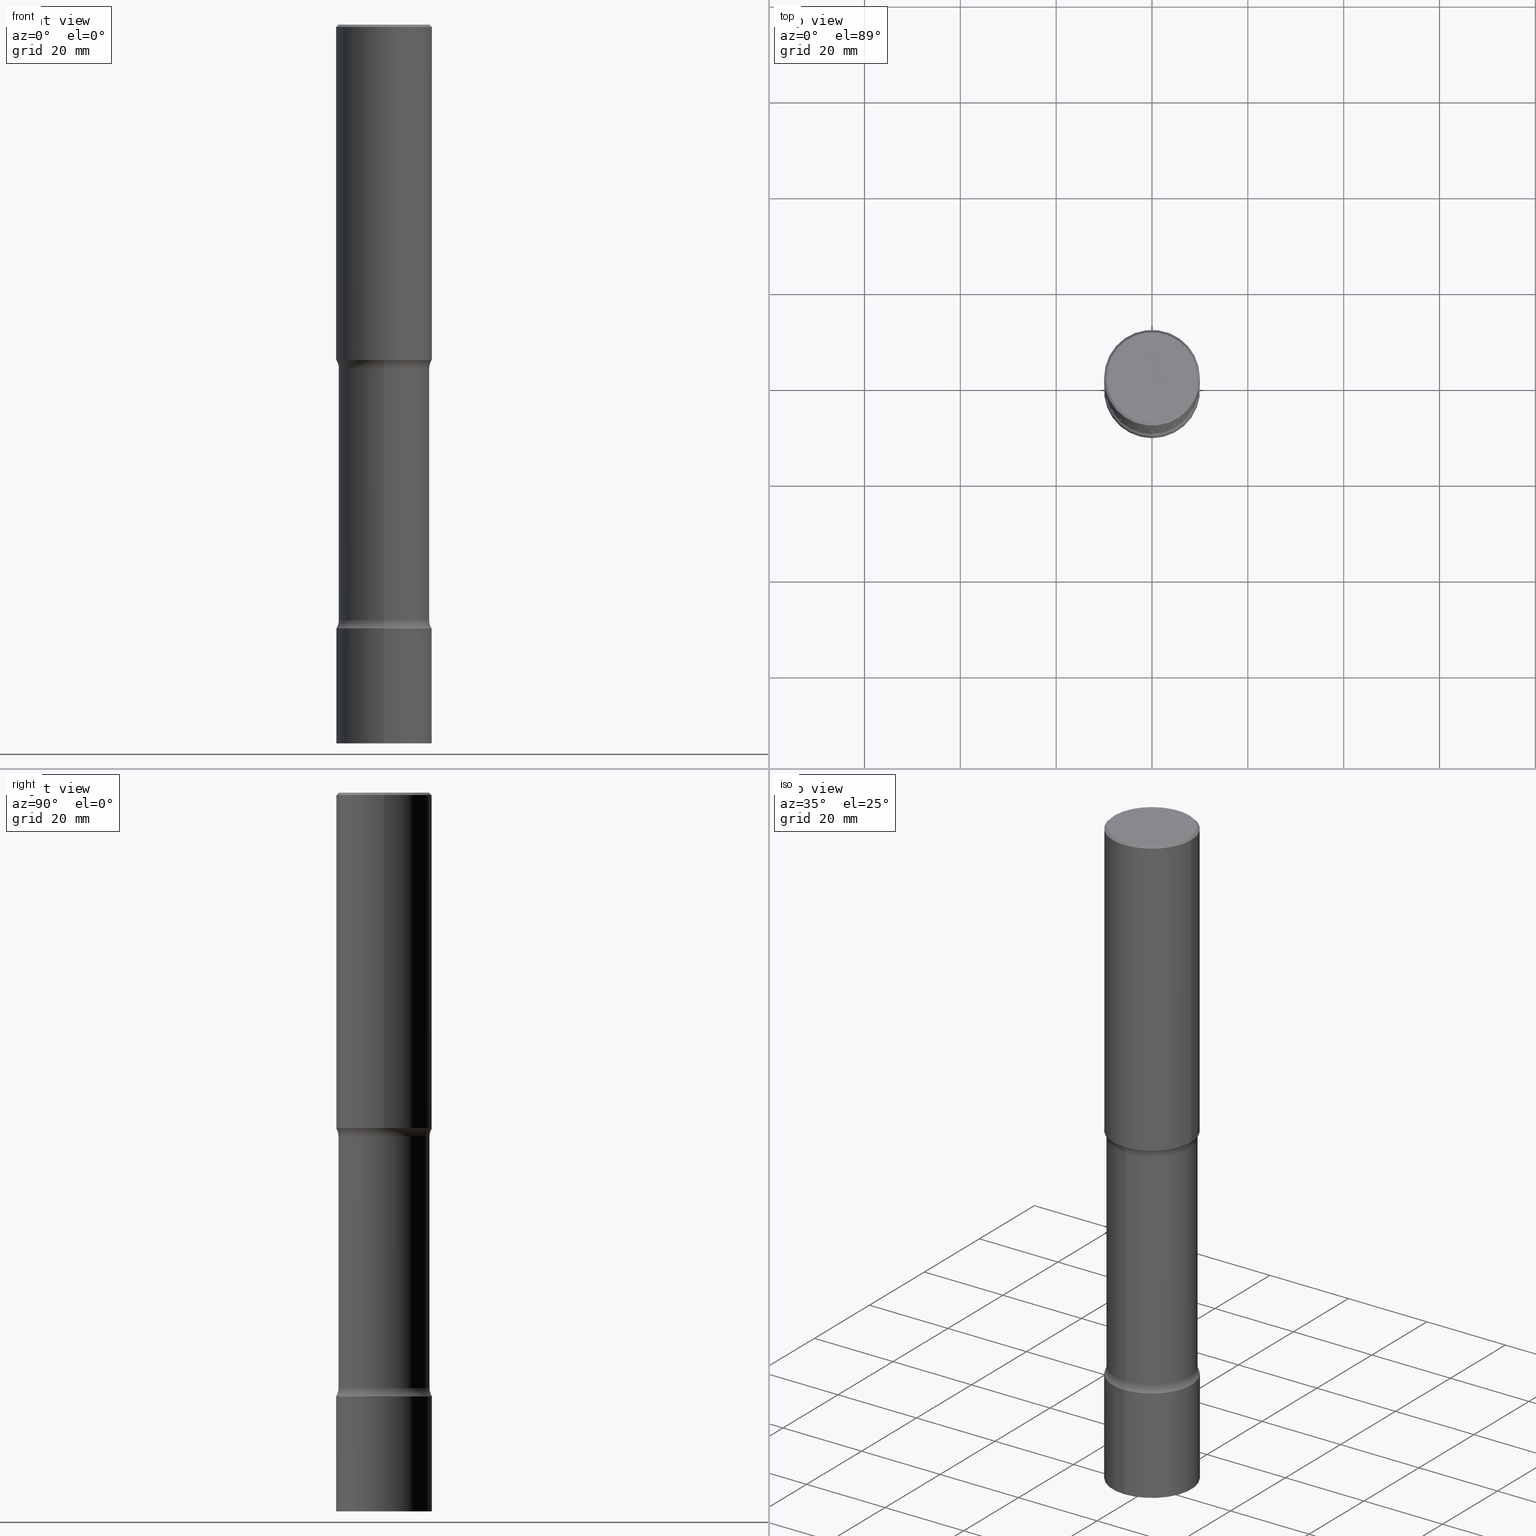
[diagram: canonical four-view strip — front | top / right | iso, engineering-drawing reading convention]
A machine part, canonical four-view strip (front | top / right | iso — engineering-drawing reading convention). The complete STEP part file that produces these views, byte-faithful:
ISO-10303-21;
HEADER;
FILE_DESCRIPTION (( 'STEP AP203' ),
    '1' );
FILE_NAME ('45111.STEP',
    '2024-03-11T13:43:24',
    ( '' ),
    ( '' ),
    'SwSTEP 2.0',
    'SolidWorks 2023',
    '' );
FILE_SCHEMA (( 'CONFIG_CONTROL_DESIGN' ));
ENDSEC;

DATA;
#1 = VERTEX_POINT ( 'NONE', #52 ) ;
#2 = CC_DESIGN_PERSON_AND_ORGANIZATION_ASSIGNMENT ( #489, #222, ( #139 ) ) ;
#3 = CARTESIAN_POINT ( 'NONE',  ( -2.565826251166408954E-15, -0.3740000000000208158, -5.905499999999998195 ) ) ;
#4 = ORIENTED_EDGE ( 'NONE', *, *, #482, .T. ) ;
#5 = VECTOR ( 'NONE', #365, 39.37007874015748143 ) ;
#6 = DIRECTION ( 'NONE',  ( -2.445783037014241883E-29, 3.491031342410958513E-15, 1.000000000000000000 ) ) ;
#7 = EDGE_CURVE ( 'NONE', #243, #1, #435, .T. ) ;
#8 = DIRECTION ( 'NONE',  ( -1.000000000000000000, 6.982962677686265922E-15, -4.883557194083112901E-29 ) ) ;
#9 = LINE ( 'NONE', #363, #44 ) ;
#10 = DIRECTION ( 'NONE',  ( -6.982962677686265922E-15, -1.000000000000000000, 2.775563112689117089E-15 ) ) ;
#11 = PLANE ( 'NONE',  #71 ) ;
#12 = CARTESIAN_POINT ( 'NONE',  ( -2.633402156444537006E-15, -0.3740000000000103242, -2.823256588393414201 ) ) ;
#13 = VERTEX_POINT ( 'NONE', #408 ) ;
#14 = CC_DESIGN_PERSON_AND_ORGANIZATION_ASSIGNMENT ( #59, #334, ( #361 ) ) ;
#15 = FACE_OUTER_BOUND ( 'NONE', #269, .T. ) ;
#16 = ORIENTED_EDGE ( 'NONE', *, *, #7, .F. ) ;
#17 = CARTESIAN_POINT ( 'NONE',  ( 6.713421992964071305E-29, -1.013053249250799915E-14, -2.823256588393415090 ) ) ;
#18 = CIRCLE ( 'NONE', #303, 0.3936999999999996613 ) ;
#19 = ORIENTED_EDGE ( 'NONE', *, *, #63, .T. ) ;
#20 = CIRCLE ( 'NONE', #436, 0.3740000000000004987 ) ;
#21 = PERSON_AND_ORGANIZATION_ROLE ( 'classification_officer' ) ;
#22 = CARTESIAN_POINT ( 'NONE',  ( -2.633402156444483363E-15, -0.3740000000000175961, -4.893243411606583493 ) ) ;
#23 = LINE ( 'NONE', #261, #498 ) ;
#24 = EDGE_CURVE ( 'NONE', #13, #357, #217, .T. ) ;
#25 = MANIFOLD_SOLID_BREP ( 'Body-Move/Copy2[2]', #323 ) ;
#26 =( NAMED_UNIT ( * ) SI_UNIT ( $, .STERADIAN. ) SOLID_ANGLE_UNIT ( ) );
#27 = CARTESIAN_POINT ( 'NONE',  ( 1.196112077380108105E-28, -1.709204794905862240E-14, -4.893243411606584381 ) ) ;
#28 = AXIS2_PLACEMENT_3D ( 'NONE', #67, #135, #372 ) ;
#29 = CIRCLE ( 'NONE', #331, 0.1249999999999998335 ) ;
#30 = APPROVAL_PERSON_ORGANIZATION ( #295, #333, #172 ) ;
#31 = APPROVAL_ROLE ( '' ) ;
#32 = DIRECTION ( 'NONE',  ( -6.982962677686265922E-15, -1.000000000000000000, 3.491031342410958908E-15 ) ) ;
#33 = ADVANCED_FACE ( 'NONE', ( #169 ), #412, .F. ) ;
#34 = CC_DESIGN_DATE_AND_TIME_ASSIGNMENT ( #66, #130, ( #276 ) ) ;
#35 = CARTESIAN_POINT ( 'NONE',  ( 0.3736999999999995326, -2.667287895133365992E-15, 8.537024980219274507E-18 ) ) ;
#36 = CARTESIAN_POINT ( 'NONE',  ( 1.444357172508760156E-28, -2.061628559260791379E-14, -5.905499999999999972 ) ) ;
#37 = TOROIDAL_SURFACE ( 'NONE', #208, 0.4990000000000001101, 0.1249999999999998335 ) ;
#38 = LOCAL_TIME ( 9, 43, 24.00000000000000000, #340 ) ;
#39 = CARTESIAN_POINT ( 'NONE',  ( 6.692757159246300993E-29, -1.016012571056113774E-14, -2.823256588393415090 ) ) ;
#40 = ORIENTED_EDGE ( 'NONE', *, *, #47, .F. ) ;
#41 = DIRECTION ( 'NONE',  ( 2.545119396642768446E-29, -3.348776021548438389E-15, -1.000000000000000000 ) ) ;
#42 = ORIENTED_EDGE ( 'NONE', *, *, #315, .F. ) ;
#43 = DIRECTION ( 'NONE',  ( -2.445783037014241883E-29, 3.491031342410958908E-15, 1.000000000000000000 ) ) ;
#44 = VECTOR ( 'NONE', #475, 39.37007874015748143 ) ;
#45 = FACE_OUTER_BOUND ( 'NONE', #477, .T. ) ;
#46 = EDGE_LOOP ( 'NONE', ( #394, #165, #429, #95 ) ) ;
#47 = EDGE_CURVE ( 'NONE', #357, #13, #18, .T. ) ;
#48 = FACE_OUTER_BOUND ( 'NONE', #483, .T. ) ;
#49 = ORIENTED_EDGE ( 'NONE', *, *, #24, .T. ) ;
#50 = FACE_OUTER_BOUND ( 'NONE', #433, .T. ) ;
#51 = EDGE_CURVE ( 'NONE', #462, #388, #76, .T. ) ;
#52 = CARTESIAN_POINT ( 'NONE',  ( -2.749192406204960943E-15, -0.3937000000000173139, -4.960599999999998566 ) ) ;
#53 =( LENGTH_UNIT ( ) NAMED_UNIT ( * ) SI_UNIT ( $, .METRE. ) );
#54 = CIRCLE ( 'NONE', #374, 0.3936999999999999389 ) ;
#55 = ORIENTED_EDGE ( 'NONE', *, *, #391, .F. ) ;
#56 = ORIENTED_EDGE ( 'NONE', *, *, #493, .F. ) ;
#57 = CARTESIAN_POINT ( 'NONE',  ( 4.890937612370306439E-31, -6.982962677686338448E-17, -0.02000000000000013572 ) ) ;
#58 = ORIENTED_EDGE ( 'NONE', *, *, #373, .F. ) ;
#59 = PERSON_AND_ORGANIZATION ( #146, #324 ) ;
#60 = AXIS2_PLACEMENT_3D ( 'NONE', #301, #212, #411 ) ;
#61 = DIRECTION ( 'NONE',  ( 6.982962677686265922E-15, 1.000000000000000000, -3.348776021548438389E-15 ) ) ;
#62 = CONICAL_SURFACE ( 'NONE', #218, 0.3936999999999996613, 0.7853981633974479459 ) ;
#63 = EDGE_CURVE ( 'NONE', #431, #382, #285, .T. ) ;
#64 = SHAPE_DEFINITION_REPRESENTATION ( #224, #316 ) ;
#65 = DIRECTION ( 'NONE',  ( 2.545119396642768446E-29, -3.348776021548438389E-15, -1.000000000000000000 ) ) ;
#66 = DATE_AND_TIME ( #255, #220 ) ;
#67 = CARTESIAN_POINT ( 'NONE',  ( 6.739467482965618232E-29, -9.622173421717824390E-15, -2.755900000000000016 ) ) ;
#68 = CARTESIAN_POINT ( 'NONE',  ( 0.000000000000000000, 0.000000000000000000, 0.000000000000000000 ) ) ;
#69 = CARTESIAN_POINT ( 'NONE',  ( 0.3936999999999999389, -1.237136582792290603E-14, -2.755900000000000016 ) ) ;
#70 = AXIS2_PLACEMENT_3D ( 'NONE', #419, #65, #61 ) ;
#71 = AXIS2_PLACEMENT_3D ( 'NONE', #196, #202, #328 ) ;
#72 = DIRECTION ( 'NONE',  ( 1.000000000000000000, -6.982962677686266711E-15, 4.876176775795935793E-29 ) ) ;
#73 = DIRECTION ( 'NONE',  ( -2.445783037014241883E-29, 3.491031342410958908E-15, 1.000000000000000000 ) ) ;
#74 = DIRECTION ( 'NONE',  ( 2.545119396642768446E-29, -3.348776021548438389E-15, -1.000000000000000000 ) ) ;
#75 = VERTEX_POINT ( 'NONE', #137 ) ;
#76 = CIRCLE ( 'NONE', #352, 0.1249999999999998335 ) ;
#77 = AXIS2_PLACEMENT_3D ( 'NONE', #430, #78, #460 ) ;
#78 = DIRECTION ( 'NONE',  ( -1.000000000000000000, 6.982962677686265922E-15, -4.883557194083112901E-29 ) ) ;
#79 = ADVANCED_FACE ( 'NONE', ( #299 ), #198, .F. ) ;
#80 = CARTESIAN_POINT ( 'NONE',  ( -2.087702828670439639E-46, 2.980686340760894400E-32, 8.537024980200822558E-18 ) ) ;
#81 = ORIENTED_EDGE ( 'NONE', *, *, #438, .T. ) ;
#82 = PLANE ( 'NONE',  #353 ) ;
#83 = AXIS2_PLACEMENT_3D ( 'NONE', #453, #492, #32 ) ;
#84 = AXIS2_PLACEMENT_3D ( 'NONE', #27, #339, #502 ) ;
#85 = DIRECTION ( 'NONE',  ( 6.982962677686265922E-15, 1.000000000000000000, -3.348776021548438389E-15 ) ) ;
#86 = VERTEX_POINT ( 'NONE', #377 ) ;
#87 = PLANE ( 'NONE',  #228 ) ;
#88 = VERTEX_POINT ( 'NONE', #35 ) ;
#89 = ORIENTED_EDGE ( 'NONE', *, *, #410, .F. ) ;
#90 = CARTESIAN_POINT ( 'NONE',  ( -2.749192406204937672E-15, -0.3937000000000205890, -5.905499999999998195 ) ) ;
#91 = CIRCLE ( 'NONE', #199, 0.3936999999999999389 ) ;
#92 = AXIS2_PLACEMENT_3D ( 'NONE', #349, #309, #351 ) ;
#93 = DIRECTION ( 'NONE',  ( -2.445468806185136597E-29, 3.491481338843145583E-15, 1.000000000000000000 ) ) ;
#94 = APPROVAL_PERSON_ORGANIZATION ( #368, #265, #31 ) ;
#95 = ORIENTED_EDGE ( 'NONE', *, *, #96, .F. ) ;
#96 = EDGE_CURVE ( 'NONE', #442, #1, #23, .T. ) ;
#97 = PERSON_AND_ORGANIZATION ( #146, #324 ) ;
#98 = LINE ( 'NONE', #305, #140 ) ;
#99 = CALENDAR_DATE ( 2024, 11, 3 ) ;
#100 = FACE_OUTER_BOUND ( 'NONE', #266, .T. ) ;
#101 = LOCAL_TIME ( 9, 43, 24.00000000000000000, #257 ) ;
#102 = DIRECTION ( 'NONE',  ( 6.982962677686265922E-15, 1.000000000000000000, -3.491031342410958513E-15 ) ) ;
#103 = DIRECTION ( 'NONE',  ( 1.000000000000000000, 0.000000000000000000, 0.000000000000000000 ) ) ;
#104 = CARTESIAN_POINT ( 'NONE',  ( -3.423388500887927708E-15, -0.4990000000000102132, -2.823256588393413313 ) ) ;
#105 = CARTESIAN_POINT ( 'NONE',  ( 2.797406750687658359E-15, 0.3936999999999826194, -4.960600000000000342 ) ) ;
#106 = AXIS2_PLACEMENT_3D ( 'NONE', #57, #356, #400 ) ;
#107 = LINE ( 'NONE', #468, #157 ) ;
#108 = ADVANCED_FACE ( 'NONE', ( #256 ), #171, .T. ) ;
#109 = APPROVAL ( #298, 'UNSPECIFIED' ) ;
#110 = VERTEX_POINT ( 'NONE', #69 ) ;
#111 = DIRECTION ( 'NONE',  ( -6.982962677686265922E-15, -1.000000000000000000, 2.775563112689117089E-15 ) ) ;
#112 = ORIENTED_EDGE ( 'NONE', *, *, #293, .T. ) ;
#113 = APPLICATION_CONTEXT ( 'configuration controlled 3d designs of mechanical parts and assemblies' ) ;
#114 = AXIS2_PLACEMENT_3D ( 'NONE', #133, #254, #370 ) ;
#115 = CC_DESIGN_APPROVAL ( #333, ( #276 ) ) ;
#116 = CARTESIAN_POINT ( 'NONE',  ( 2.611628041454786670E-15, 0.3739999999999834568, -4.893243411606585269 ) ) ;
#117 = EDGE_LOOP ( 'NONE', ( #206, #232, #318, #278 ) ) ;
#118 = DIRECTION ( 'NONE',  ( 6.982962677686265922E-15, 1.000000000000000000, -3.348776021548438389E-15 ) ) ;
#119 = LENGTH_MEASURE_WITH_UNIT ( LENGTH_MEASURE( 0.02539999999999999897 ), #53 );
#120 = EDGE_LOOP ( 'NONE', ( #364, #42 ) ) ;
#121 = EDGE_CURVE ( 'NONE', #88, #357, #98, .T. ) ;
#122 = DIRECTION ( 'NONE',  ( 1.000000000000000000, -6.982962677686265133E-15, 0.000000000000000000 ) ) ;
#123 = ORIENTED_EDGE ( 'NONE', *, *, #51, .T. ) ;
#124 = DIRECTION ( 'NONE',  ( 2.545119396642768446E-29, -3.348776021548438389E-15, -1.000000000000000000 ) ) ;
#125 = CARTESIAN_POINT ( 'NONE',  ( 1.196627412415483839E-28, -1.708466805804155848E-14, -4.893243411606584381 ) ) ;
#126 = PLANE ( 'NONE',  #420 ) ;
#127 = CARTESIAN_POINT ( 'NONE',  ( 1.213255133341284668E-28, -1.731761007716380225E-14, -4.960599999999999454 ) ) ;
#128 = ORIENTED_EDGE ( 'NONE', *, *, #347, .F. ) ;
#129 = ORIENTED_EDGE ( 'NONE', *, *, #417, .F. ) ;
#130 = DATE_TIME_ROLE ( 'classification_date' ) ;
#131 = CARTESIAN_POINT ( 'NONE',  ( 2.611628041454731844E-15, 0.3739999999999900071, -2.823256588393416422 ) ) ;
#132 = AXIS2_PLACEMENT_3D ( 'NONE', #504, #379, #343 ) ;
#133 = CARTESIAN_POINT ( 'NONE',  ( 6.521326599634536490E-29, -9.934563582455961051E-15, -2.755900000000000016 ) ) ;
#134 = COORDINATED_UNIVERSAL_TIME_OFFSET ( 5, 0, .BEHIND. ) ;
#135 = DIRECTION ( 'NONE',  ( 2.545119396642767886E-29, -3.348776021548438389E-15, -1.000000000000000000 ) ) ;
#136 = CALENDAR_DATE ( 2024, 11, 3 ) ;
#137 = CARTESIAN_POINT ( 'NONE',  ( -0.3937000000000000499, -2.048594773559827874E-15, -2.755900000000000016 ) ) ;
#138 = DIRECTION ( 'NONE',  ( 1.000000000000000000, -6.982962677686266711E-15, 4.876212485538981284E-29 ) ) ;
#139 = PRODUCT ( '45111', '45111', '', ( #170 ) ) ;
#140 = VECTOR ( 'NONE', #209, 39.37007874015748143 ) ;
#141 = AXIS2_PLACEMENT_3D ( 'NONE', #263, #74, #424 ) ;
#142 = DIRECTION ( 'NONE',  ( 1.000000000000000000, -6.982962677686266711E-15, 4.876176775795935793E-29 ) ) ;
#143 = ORIENTED_EDGE ( 'NONE', *, *, #47, .T. ) ;
#144 = DIRECTION ( 'NONE',  ( -1.000000000000000000, 6.982962677686266711E-15, 0.000000000000000000 ) ) ;
#145 = EDGE_LOOP ( 'NONE', ( #112, #183 ) ) ;
#146 = PERSON ( 'UNSPECIFIED', 'UNSPECIFIED', 'UNSPECIFIED', ('UNSPECIFIED'), ('UNSPECIFIED'), ('UNSPECIFIED') ) ;
#147 = FACE_OUTER_BOUND ( 'NONE', #472, .T. ) ;
#148 = ORIENTED_EDGE ( 'NONE', *, *, #233, .T. ) ;
#149 = VECTOR ( 'NONE', #6, 39.37007874015748143 ) ;
#150 = EDGE_CURVE ( 'NONE', #110, #75, #54, .T. ) ;
#151 = CYLINDRICAL_SURFACE ( 'NONE', #360, 0.3740000000000002767 ) ;
#152 = ORIENTED_EDGE ( 'NONE', *, *, #302, .F. ) ;
#153 = DIRECTION ( 'NONE',  ( 1.000000000000000000, -6.982962677686266711E-15, 4.876212485538981284E-29 ) ) ;
#154 = ORIENTED_EDGE ( 'NONE', *, *, #347, .T. ) ;
#155 = CARTESIAN_POINT ( 'NONE',  ( 6.739467482965618232E-29, -9.622173421717824390E-15, -2.755900000000000016 ) ) ;
#156 = VERTEX_POINT ( 'NONE', #22 ) ;
#157 = VECTOR ( 'NONE', #188, 39.37007874015748143 ) ;
#158 = CARTESIAN_POINT ( 'NONE',  ( 6.739467482965618232E-29, -9.622173421717824390E-15, -2.755900000000000016 ) ) ;
#159 = ORIENTED_EDGE ( 'NONE', *, *, #273, .T. ) ;
#160 = ADVANCED_FACE ( 'NONE', ( #421 ), #369, .T. ) ;
#161 = CYLINDRICAL_SURFACE ( 'NONE', #413, 0.3740000000000002767 ) ;
#162 = VERTEX_POINT ( 'NONE', #131 ) ;
#163 = DIRECTION ( 'NONE',  ( 1.000000000000000000, -6.982962677686265922E-15, 4.876176775795935793E-29 ) ) ;
#164 = EDGE_CURVE ( 'NONE', #326, #88, #466, .T. ) ;
#165 = ORIENTED_EDGE ( 'NONE', *, *, #380, .T. ) ;
#166 = AXIS2_PLACEMENT_3D ( 'NONE', #444, #359, #332 ) ;
#167 = APPLICATION_PROTOCOL_DEFINITION ( 'international standard', 'config_control_design', 1994, #497 ) ;
#168 = CIRCLE ( 'NONE', #267, 0.3736999999999995326 ) ;
#169 = FACE_OUTER_BOUND ( 'NONE', #117, .T. ) ;
#170 = MECHANICAL_CONTEXT ( 'NONE', #497, 'mechanical' ) ;
#171 = CYLINDRICAL_SURFACE ( 'NONE', #83, 0.3936999999999999389 ) ;
#172 = APPROVAL_ROLE ( '' ) ;
#173 = DIRECTION ( 'NONE',  ( -2.445783037014241883E-29, 3.491031342410958513E-15, 1.000000000000000000 ) ) ;
#174 = DIRECTION ( 'NONE',  ( 0.000000000000000000, 0.000000000000000000, 1.000000000000000000 ) ) ;
#175 = DIRECTION ( 'NONE',  ( 1.000000000000000000, -6.982962677686265133E-15, 0.000000000000000000 ) ) ;
#176 = CC_DESIGN_APPROVAL ( #109, ( #486 ) ) ;
#177 = CALENDAR_DATE ( 2024, 11, 3 ) ;
#178 = CYLINDRICAL_SURFACE ( 'NONE', #344, 0.3936999999999998279 ) ;
#179 = MANIFOLD_SOLID_BREP ( 'Body-Move/Copy2[1]', #485 ) ;
#180 = CARTESIAN_POINT ( 'NONE',  ( 0.000000000000000000, 0.000000000000000000, 0.000000000000000000 ) ) ;
#181 = LINE ( 'NONE', #3, #393 ) ;
#182 = CIRCLE ( 'NONE', #114, 0.3937000000000003830 ) ;
#183 = ORIENTED_EDGE ( 'NONE', *, *, #7, .T. ) ;
#184 = CARTESIAN_POINT ( 'NONE',  ( 2.749192406205149086E-15, 0.3936999999999903910, -2.755900000000000905 ) ) ;
#185 = ORIENTED_EDGE ( 'NONE', *, *, #96, .T. ) ;
#186 = CARTESIAN_POINT ( 'NONE',  ( 0.3936999999999996613, -2.770807688499512973E-15, -0.02000000000000013572 ) ) ;
#187 = ORIENTED_EDGE ( 'NONE', *, *, #164, .T. ) ;
#188 = DIRECTION ( 'NONE',  ( -2.445468806185136877E-29, 3.491481338843145188E-15, 1.000000000000000000 ) ) ;
#189 = CONICAL_SURFACE ( 'NONE', #106, 0.3936999999999996613, 0.7853981633974479459 ) ;
#190 = DIRECTION ( 'NONE',  ( 2.445468806185136597E-29, -3.491481338843145583E-15, -1.000000000000000000 ) ) ;
#191 = ADVANCED_FACE ( 'NONE', ( #335 ), #178, .T. ) ;
#192 = EDGE_LOOP ( 'NONE', ( #282, #227 ) ) ;
#193 = EDGE_CURVE ( 'NONE', #287, #388, #182, .T. ) ;
#194 = DIRECTION ( 'NONE',  ( 2.545119396642768446E-29, -3.348776021548438389E-15, -1.000000000000000000 ) ) ;
#195 = ORIENTED_EDGE ( 'NONE', *, *, #380, .F. ) ;
#196 = CARTESIAN_POINT ( 'NONE',  ( 2.609533152651354254E-15, 0.3736999999999995326, -1.300498063835581630E-15 ) ) ;
#197 = EDGE_LOOP ( 'NONE', ( #362, #239, #487, #49 ) ) ;
#198 = TOROIDAL_SURFACE ( 'NONE', #70, 0.4990000000000001101, 0.1249999999999998335 ) ;
#199 = AXIS2_PLACEMENT_3D ( 'NONE', #463, #43, #306 ) ;
#200 = DIRECTION ( 'NONE',  ( -2.438088387897960049E-29, 3.491481338843145188E-15, 1.000000000000000000 ) ) ;
#201 = ORIENTED_EDGE ( 'NONE', *, *, #51, .F. ) ;
#202 = DIRECTION ( 'NONE',  ( 2.438088387897960049E-29, -3.491481338843145188E-15, -1.000000000000000000 ) ) ;
#203 = ORIENTED_EDGE ( 'NONE', *, *, #373, .T. ) ;
#204 = CC_DESIGN_PERSON_AND_ORGANIZATION_ASSIGNMENT ( #207, #21, ( #276 ) ) ;
#205 = DIRECTION ( 'NONE',  ( 2.545119396642768446E-29, -3.348776021548438389E-15, -1.000000000000000000 ) ) ;
#206 = ORIENTED_EDGE ( 'NONE', *, *, #482, .F. ) ;
#207 = PERSON_AND_ORGANIZATION ( #146, #324 ) ;
#208 = AXIS2_PLACEMENT_3D ( 'NONE', #17, #205, #85 ) ;
#209 = DIRECTION ( 'NONE',  ( 0.7071067811865472397, -7.319954787623254468E-15, -0.7071067811865477948 ) ) ;
#210 = PERSON_AND_ORGANIZATION_ROLE ( 'creator' ) ;
#211 = ADVANCED_FACE ( 'NONE', ( #100 ), #496, .T. ) ;
#212 = DIRECTION ( 'NONE',  ( -2.445783037014241883E-29, 3.491031342410958908E-15, 1.000000000000000000 ) ) ;
#213 = CC_DESIGN_PERSON_AND_ORGANIZATION_ASSIGNMENT ( #214, #210, ( #361 ) ) ;
#214 = PERSON_AND_ORGANIZATION ( #146, #324 ) ;
#215 = CARTESIAN_POINT ( 'NONE',  ( -2.087702828670439639E-46, 2.980686340760894400E-32, 8.537024980200822558E-18 ) ) ;
#216 = DATE_AND_TIME ( #448, #402 ) ;
#217 = CIRCLE ( 'NONE', #166, 0.3936999999999996613 ) ;
#218 = AXIS2_PLACEMENT_3D ( 'NONE', #355, #190, #144 ) ;
#219 = DIRECTION ( 'NONE',  ( 1.000000000000000000, -6.860497997771530774E-15, 4.842546515724605731E-29 ) ) ;
#220 = LOCAL_TIME ( 9, 43, 24.00000000000000000, #491 ) ;
#221 = ADVANCED_FACE ( 'NONE', ( #418 ), #457, .F. ) ;
#222 = PERSON_AND_ORGANIZATION_ROLE ( 'design_owner' ) ;
#223 = FACE_OUTER_BOUND ( 'NONE', #390, .T. ) ;
#224 = PRODUCT_DEFINITION_SHAPE ( 'NONE', 'NONE',  #486 ) ;
#225 = LINE ( 'NONE', #264, #149 ) ;
#226 = CARTESIAN_POINT ( 'NONE',  ( 1.213099255996198727E-28, -1.731984232946530752E-14, -4.960599999999999454 ) ) ;
#227 = ORIENTED_EDGE ( 'NONE', *, *, #423, .F. ) ;
#228 = AXIS2_PLACEMENT_3D ( 'NONE', #473, #396, #481 ) ;
#229 = DIRECTION ( 'NONE',  ( 2.545119396642768446E-29, -3.348776021548438389E-15, -1.000000000000000000 ) ) ;
#230 = ORIENTED_EDGE ( 'NONE', *, *, #391, .T. ) ;
#231 = DIRECTION ( 'NONE',  ( -2.445468806185136597E-29, 3.491481338843145583E-15, 1.000000000000000000 ) ) ;
#232 = ORIENTED_EDGE ( 'NONE', *, *, #63, .F. ) ;
#233 = EDGE_CURVE ( 'NONE', #156, #399, #311, .T. ) ;
#234 = CARTESIAN_POINT ( 'NONE',  ( 3.484498376165567248E-15, 0.4989999999999830682, -4.893243411606586157 ) ) ;
#235 = CIRCLE ( 'NONE', #253, 0.1249999999999998335 ) ;
#236 = PRODUCT_RELATED_PRODUCT_CATEGORY ( 'detail', '', ( #139 ) ) ;
#237 = DIRECTION ( 'NONE',  ( 2.545119396642768446E-29, -3.348776021548438389E-15, -1.000000000000000000 ) ) ;
#238 = DIMENSIONAL_EXPONENTS ( 1.000000000000000000, 0.000000000000000000, 0.000000000000000000, 0.000000000000000000, 0.000000000000000000, 0.000000000000000000, 0.000000000000000000 ) ;
#239 = ORIENTED_EDGE ( 'NONE', *, *, #164, .F. ) ;
#240 = CARTESIAN_POINT ( 'NONE',  ( 2.611628041454811125E-15, 0.3739999999999797931, -5.905500000000000860 ) ) ;
#241 = ORIENTED_EDGE ( 'NONE', *, *, #308, .T. ) ;
#242 = CARTESIAN_POINT ( 'NONE',  ( 2.749192406205205096E-15, 0.3936999999999827304, -4.960600000000000342 ) ) ;
#243 = VERTEX_POINT ( 'NONE', #105 ) ;
#244 = AXIS2_PLACEMENT_3D ( 'NONE', #503, #297, #102 ) ;
#245 = VECTOR ( 'NONE', #237, 39.37007874015748143 ) ;
#246 = CARTESIAN_POINT ( 'NONE',  ( 1.196112077380108105E-28, -1.709204794905862240E-14, -4.893243411606584381 ) ) ;
#247 = DIRECTION ( 'NONE',  ( 1.000000000000000000, -6.982962677686266711E-15, 0.000000000000000000 ) ) ;
#248 = ORIENTED_EDGE ( 'NONE', *, *, #315, .T. ) ;
#249 = DATE_TIME_ROLE ( 'creation_date' ) ;
#250 = DIRECTION ( 'NONE',  ( -2.445468806185136597E-29, 3.491481338843145583E-15, 1.000000000000000000 ) ) ;
#251 = AXIS2_PLACEMENT_3D ( 'NONE', #127, #449, #10 ) ;
#252 = APPROVAL_DATE_TIME ( #300, #265 ) ;
#253 = AXIS2_PLACEMENT_3D ( 'NONE', #407, #319, #325 ) ;
#254 = DIRECTION ( 'NONE',  ( 2.545119396642768446E-29, -3.348776021548438389E-15, -1.000000000000000000 ) ) ;
#255 = CALENDAR_DATE ( 2024, 11, 3 ) ;
#256 = FACE_OUTER_BOUND ( 'NONE', #46, .T. ) ;
#257 = COORDINATED_UNIVERSAL_TIME_OFFSET ( 5, 0, .BEHIND. ) ;
#258 = DIRECTION ( 'NONE',  ( 6.860497997771531562E-15, 1.000000000000000000, 0.000000000000000000 ) ) ;
#259 = SECURITY_CLASSIFICATION_LEVEL ( 'unclassified' ) ;
#260 = AXIS2_PLACEMENT_3D ( 'NONE', #262, #389, #118 ) ;
#261 = CARTESIAN_POINT ( 'NONE',  ( -2.749192406205082428E-15, -0.3936999999999999389, 1.374419039507194384E-15 ) ) ;
#262 = CARTESIAN_POINT ( 'NONE',  ( 1.196627412415483839E-28, -1.708466805804155848E-14, -4.893243411606584381 ) ) ;
#263 = CARTESIAN_POINT ( 'NONE',  ( 6.692757159246300993E-29, -1.016012571056113774E-14, -2.823256588393415090 ) ) ;
#264 = CARTESIAN_POINT ( 'NONE',  ( 2.797406750687513603E-15, 0.3936999999999999389, -1.374419039507194384E-15 ) ) ;
#265 = APPROVAL ( #501, 'UNSPECIFIED' ) ;
#266 = EDGE_LOOP ( 'NONE', ( #397, #152 ) ) ;
#267 = AXIS2_PLACEMENT_3D ( 'NONE', #80, #346, #153 ) ;
#268 = CARTESIAN_POINT ( 'NONE',  ( 1.453743465130059735E-28, -2.048186853992491890E-14, -5.905499999999999972 ) ) ;
#269 = EDGE_LOOP ( 'NONE', ( #128, #464, #143, #89 ) ) ;
#270 = DIRECTION ( 'NONE',  ( -6.982962677686264344E-15, -1.000000000000000000, 0.000000000000000000 ) ) ;
#271 = ORIENTED_EDGE ( 'NONE', *, *, #423, .T. ) ;
#272 = ADVANCED_FACE ( 'NONE', ( #223 ), #454, .T. ) ;
#273 = EDGE_CURVE ( 'NONE', #462, #156, #181, .T. ) ;
#274 = LINE ( 'NONE', #240, #245 ) ;
#275 = CIRCLE ( 'NONE', #488, 0.3936999999999999389 ) ;
#276 = SECURITY_CLASSIFICATION ( '', '', #259 ) ;
#277 = DIRECTION ( 'NONE',  ( 6.982962677686265922E-15, 1.000000000000000000, -2.775563112689117089E-15 ) ) ;
#278 = ORIENTED_EDGE ( 'NONE', *, *, #493, .T. ) ;
#279 = ADVANCED_FACE ( 'NONE', ( #147 ), #367, .F. ) ;
#280 = CARTESIAN_POINT ( 'NONE',  ( 1.213255133341284668E-28, -1.731761007716380225E-14, -4.960599999999999454 ) ) ;
#281 = EDGE_CURVE ( 'NONE', #162, #462, #338, .T. ) ;
#282 = ORIENTED_EDGE ( 'NONE', *, *, #150, .F. ) ;
#283 = FACE_OUTER_BOUND ( 'NONE', #447, .T. ) ;
#284 = DIRECTION ( 'NONE',  ( 2.545119396642768446E-29, -3.348776021548438389E-15, -1.000000000000000000 ) ) ;
#285 = CIRCLE ( 'NONE', #132, 0.3936999999999999389 ) ;
#286 = FACE_OUTER_BOUND ( 'NONE', #192, .T. ) ;
#287 = VERTEX_POINT ( 'NONE', #184 ) ;
#288 = APPLICATION_PROTOCOL_DEFINITION ( 'international standard', 'config_control_design', 1994, #113 ) ;
#289 = ORIENTED_EDGE ( 'NONE', *, *, #273, .F. ) ;
#290 = ADVANCED_FACE ( 'NONE', ( #508 ), #62, .T. ) ;
#291 = APPROVAL_STATUS ( 'not_yet_approved' ) ;
#292 = DIRECTION ( 'NONE',  ( -2.445468806185136597E-29, 3.491481338843145583E-15, 1.000000000000000000 ) ) ;
#293 = EDGE_CURVE ( 'NONE', #1, #243, #459, .T. ) ;
#294 = CLOSED_SHELL ( 'NONE', ( #403, #279, #500, #79, #221, #409, #33, #455 ) ) ;
#295 = PERSON_AND_ORGANIZATION ( #146, #324 ) ;
#296 = CIRCLE ( 'NONE', #506, 0.3937000000000003830 ) ;
#297 = DIRECTION ( 'NONE',  ( 2.445783037014241602E-29, -3.491031342410958513E-15, -1.000000000000000000 ) ) ;
#298 = APPROVAL_STATUS ( 'not_yet_approved' ) ;
#299 = FACE_OUTER_BOUND ( 'NONE', #437, .T. ) ;
#300 = DATE_AND_TIME ( #136, #38 ) ;
#301 = CARTESIAN_POINT ( 'NONE',  ( 0.000000000000000000, 0.000000000000000000, 0.000000000000000000 ) ) ;
#302 = EDGE_CURVE ( 'NONE', #86, #442, #91, .T. ) ;
#303 = AXIS2_PLACEMENT_3D ( 'NONE', #480, #93, #247 ) ;
#304 = CIRCLE ( 'NONE', #141, 0.3740000000000001656 ) ;
#305 = CARTESIAN_POINT ( 'NONE',  ( 0.3936999999999996613, -2.770807688499512973E-15, -0.02000000000000013572 ) ) ;
#306 = DIRECTION ( 'NONE',  ( -6.982962677686265922E-15, -1.000000000000000000, 2.775563112689117089E-15 ) ) ;
#307 = EDGE_LOOP ( 'NONE', ( #385, #271, #203, #313 ) ) ;
#308 = EDGE_CURVE ( 'NONE', #162, #287, #445, .T. ) ;
#309 = DIRECTION ( 'NONE',  ( -2.445783037014241883E-29, 3.491031342410958908E-15, 1.000000000000000000 ) ) ;
#310 = CARTESIAN_POINT ( 'NONE',  ( 6.521326599634536490E-29, -9.934563582455961051E-15, -2.755900000000000016 ) ) ;
#311 = CIRCLE ( 'NONE', #84, 0.3740000000000004987 ) ;
#312 = CIRCLE ( 'NONE', #375, 0.3936999999999999389 ) ;
#313 = ORIENTED_EDGE ( 'NONE', *, *, #24, .F. ) ;
#314 = AXIS2_PLACEMENT_3D ( 'NONE', #280, #443, #277 ) ;
#315 = EDGE_CURVE ( 'NONE', #388, #287, #296, .T. ) ;
#316 = ADVANCED_BREP_SHAPE_REPRESENTATION ( '45111', ( #179, #25, #354, #383 ), #476 ) ;
#317 = DIRECTION ( 'NONE',  ( 6.982962677686266711E-15, 1.000000000000000000, -2.921762560068728623E-15 ) ) ;
#318 = ORIENTED_EDGE ( 'NONE', *, *, #341, .T. ) ;
#319 = DIRECTION ( 'NONE',  ( 1.000000000000000000, -6.860497997771530774E-15, 4.842546515724605731E-29 ) ) ;
#320 = ORIENTED_EDGE ( 'NONE', *, *, #150, .T. ) ;
#321 = LINE ( 'NONE', #479, #5 ) ;
#322 = EDGE_LOOP ( 'NONE', ( #426, #159, #56, #129 ) ) ;
#323 = CLOSED_SHELL ( 'NONE', ( #272, #465, #290, #458, #478, #191 ) ) ;
#324 = ORGANIZATION ( 'UNSPECIFIED', 'UNSPECIFIED', '' ) ;
#325 = DIRECTION ( 'NONE',  ( 6.860497997771527618E-15, 1.000000000000000000, 0.000000000000000000 ) ) ;
#326 = VERTEX_POINT ( 'NONE', #422 ) ;
#327 = CC_DESIGN_DATE_AND_TIME_ASSIGNMENT ( #495, #249, ( #486 ) ) ;
#328 = DIRECTION ( 'NONE',  ( -1.000000000000000000, 6.982962677686265922E-15, -4.876176775795935793E-29 ) ) ;
#329 = ORIENTED_EDGE ( 'NONE', *, *, #281, .F. ) ;
#330 = ORIENTED_EDGE ( 'NONE', *, *, #193, .T. ) ;
#331 = AXIS2_PLACEMENT_3D ( 'NONE', #234, #8, #270 ) ;
#332 = DIRECTION ( 'NONE',  ( 1.000000000000000000, -6.982962677686266711E-15, 0.000000000000000000 ) ) ;
#333 = APPROVAL ( #291, 'UNSPECIFIED' ) ;
#334 = PERSON_AND_ORGANIZATION_ROLE ( 'design_supplier' ) ;
#335 = FACE_OUTER_BOUND ( 'NONE', #307, .T. ) ;
#336 = AXIS2_PLACEMENT_3D ( 'NONE', #125, #284, #401 ) ;
#337 = APPROVAL_DATE_TIME ( #216, #109 ) ;
#338 = CIRCLE ( 'NONE', #467, 0.3740000000000001656 ) ;
#339 = DIRECTION ( 'NONE',  ( 2.545119396642768446E-29, -3.348776021548438389E-15, -1.000000000000000000 ) ) ;
#340 = COORDINATED_UNIVERSAL_TIME_OFFSET ( 5, 0, .BEHIND. ) ;
#341 = EDGE_CURVE ( 'NONE', #431, #399, #29, .T. ) ;
#342 = DIRECTION ( 'NONE',  ( -2.445468806185136597E-29, 3.491481338843145583E-15, 1.000000000000000000 ) ) ;
#343 = DIRECTION ( 'NONE',  ( 6.982962677686265922E-15, 1.000000000000000000, -2.775563112689117089E-15 ) ) ;
#344 = AXIS2_PLACEMENT_3D ( 'NONE', #451, #342, #72 ) ;
#345 = DIRECTION ( 'NONE',  ( 6.982962677686265133E-15, 1.000000000000000000, -2.775563112689113934E-15 ) ) ;
#346 = DIRECTION ( 'NONE',  ( -2.445468806185136597E-29, 3.491481338843145583E-15, 1.000000000000000000 ) ) ;
#347 = EDGE_CURVE ( 'NONE', #88, #326, #168, .T. ) ;
#348 = ORIENTED_EDGE ( 'NONE', *, *, #308, .F. ) ;
#349 = CARTESIAN_POINT ( 'NONE',  ( 1.213255133341284668E-28, -1.731761007716380225E-14, -4.960599999999999454 ) ) ;
#350 = ORIENTED_EDGE ( 'NONE', *, *, #438, .F. ) ;
#351 = DIRECTION ( 'NONE',  ( -6.982962677686265922E-15, -1.000000000000000000, 2.775563112689117089E-15 ) ) ;
#352 = AXIS2_PLACEMENT_3D ( 'NONE', #104, #219, #258 ) ;
#353 = AXIS2_PLACEMENT_3D ( 'NONE', #226, #384, #392 ) ;
#354 = MANIFOLD_SOLID_BREP ( 'Body-Move/Copy2[4]', #294 ) ;
#355 = CARTESIAN_POINT ( 'NONE',  ( 4.890937612370306439E-31, -6.982962677686338448E-17, -0.02000000000000013572 ) ) ;
#356 = DIRECTION ( 'NONE',  ( 2.445468806185136597E-29, -3.491481338843145583E-15, -1.000000000000000000 ) ) ;
#357 = VERTEX_POINT ( 'NONE', #186 ) ;
#358 = DIRECTION ( 'NONE',  ( -2.445468806185136597E-29, 3.491481338843145583E-15, 1.000000000000000000 ) ) ;
#359 = DIRECTION ( 'NONE',  ( -2.445468806185136597E-29, 3.491481338843145583E-15, 1.000000000000000000 ) ) ;
#360 = AXIS2_PLACEMENT_3D ( 'NONE', #268, #41, #317 ) ;
#361 = PRODUCT_DEFINITION_FORMATION_WITH_SPECIFIED_SOURCE ( 'ANY', '', #139, .NOT_KNOWN. ) ;
#362 = ORIENTED_EDGE ( 'NONE', *, *, #121, .F. ) ;
#363 = CARTESIAN_POINT ( 'NONE',  ( -0.3936999999999996613, 2.679362779428217552E-15, -0.02000000000000013572 ) ) ;
#364 = ORIENTED_EDGE ( 'NONE', *, *, #193, .F. ) ;
#365 = DIRECTION ( 'NONE',  ( -2.445468806185136877E-29, 3.491481338843145188E-15, 1.000000000000000000 ) ) ;
#366 = ORIENTED_EDGE ( 'NONE', *, *, #425, .T. ) ;
#367 = TOROIDAL_SURFACE ( 'NONE', #260, 0.4990000000000001101, 0.1249999999999997918 ) ;
#368 = PERSON_AND_ORGANIZATION ( #146, #324 ) ;
#369 = CYLINDRICAL_SURFACE ( 'NONE', #60, 0.3936999999999999389 ) ;
#370 = DIRECTION ( 'NONE',  ( 6.982962677686265133E-15, 1.000000000000000000, -2.775563112689113934E-15 ) ) ;
#371 = EDGE_CURVE ( 'NONE', #442, #86, #312, .T. ) ;
#372 = DIRECTION ( 'NONE',  ( 6.982962677686265922E-15, 1.000000000000000000, -3.348776021548438389E-15 ) ) ;
#373 = EDGE_CURVE ( 'NONE', #110, #357, #107, .T. ) ;
#374 = AXIS2_PLACEMENT_3D ( 'NONE', #415, #250, #175 ) ;
#375 = AXIS2_PLACEMENT_3D ( 'NONE', #36, #73, #111 ) ;
#376 = PERSON_AND_ORGANIZATION_ROLE ( 'creator' ) ;
#377 = CARTESIAN_POINT ( 'NONE',  ( 2.797406750687646526E-15, 0.3936999999999793443, -5.905500000000000860 ) ) ;
#378 = APPROVAL_ROLE ( '' ) ;
#379 = DIRECTION ( 'NONE',  ( 2.545119396642768446E-29, -3.348776021548438389E-15, -1.000000000000000000 ) ) ;
#380 = EDGE_CURVE ( 'NONE', #86, #243, #225, .T. ) ;
#381 = DIRECTION ( 'NONE',  ( 6.982962677686266711E-15, 1.000000000000000000, -2.921762560068729411E-15 ) ) ;
#382 = VERTEX_POINT ( 'NONE', #507 ) ;
#383 = AXIS2_PLACEMENT_3D ( 'NONE', #68, #174, #103 ) ;
#384 = DIRECTION ( 'NONE',  ( 2.445783037014241602E-29, -3.491031342410958513E-15, -1.000000000000000000 ) ) ;
#385 = ORIENTED_EDGE ( 'NONE', *, *, #425, .F. ) ;
#386 = UNCERTAINTY_MEASURE_WITH_UNIT (LENGTH_MEASURE( 1.000000000000000082E-05 ), #484, 'distance_accuracy_value', 'NONE');
#387 = FACE_OUTER_BOUND ( 'NONE', #322, .T. ) ;
#388 = VERTEX_POINT ( 'NONE', #428 ) ;
#389 = DIRECTION ( 'NONE',  ( 2.545119396642768446E-29, -3.348776021548438389E-15, -1.000000000000000000 ) ) ;
#390 = EDGE_LOOP ( 'NONE', ( #320, #366, #40, #58 ) ) ;
#391 = EDGE_CURVE ( 'NONE', #462, #162, #304, .T. ) ;
#392 = DIRECTION ( 'NONE',  ( 6.982962677686265922E-15, 1.000000000000000000, -3.491031342410958513E-15 ) ) ;
#393 = VECTOR ( 'NONE', #432, 39.37007874015748143 ) ;
#394 = ORIENTED_EDGE ( 'NONE', *, *, #371, .T. ) ;
#395 = CC_DESIGN_APPROVAL ( #265, ( #361 ) ) ;
#396 = DIRECTION ( 'NONE',  ( -2.545119396642767886E-29, 3.348776021548438389E-15, 1.000000000000000000 ) ) ;
#397 = ORIENTED_EDGE ( 'NONE', *, *, #371, .F. ) ;
#398 = DIRECTION ( 'NONE',  ( 6.982962677686266711E-15, 1.000000000000000000, -2.921762560068728623E-15 ) ) ;
#399 = VERTEX_POINT ( 'NONE', #116 ) ;
#400 = DIRECTION ( 'NONE',  ( -1.000000000000000000, 6.982962677686266711E-15, 0.000000000000000000 ) ) ;
#401 = DIRECTION ( 'NONE',  ( 6.982962677686265922E-15, 1.000000000000000000, -3.348776021548438389E-15 ) ) ;
#402 = LOCAL_TIME ( 9, 43, 24.00000000000000000, #134 ) ;
#403 = ADVANCED_FACE ( 'NONE', ( #387 ), #151, .T. ) ;
#404 = CC_DESIGN_SECURITY_CLASSIFICATION ( #276, ( #361 ) ) ;
#405 = ORIENTED_EDGE ( 'NONE', *, *, #233, .F. ) ;
#406 = ADVANCED_FACE ( 'NONE', ( #471 ), #82, .F. ) ;
#407 = CARTESIAN_POINT ( 'NONE',  ( -3.423388500887874854E-15, -0.4990000000000172076, -4.893243411606582605 ) ) ;
#408 = CARTESIAN_POINT ( 'NONE',  ( -0.3936999999999996613, 2.679362779428217552E-15, -0.02000000000000013572 ) ) ;
#409 = ADVANCED_FACE ( 'NONE', ( #45 ), #87, .F. ) ;
#410 = EDGE_CURVE ( 'NONE', #326, #13, #9, .T. ) ;
#411 = DIRECTION ( 'NONE',  ( -6.982962677686265922E-15, -1.000000000000000000, 3.491031342410958908E-15 ) ) ;
#412 = TOROIDAL_SURFACE ( 'NONE', #336, 0.4990000000000001101, 0.1249999999999997918 ) ;
#413 = AXIS2_PLACEMENT_3D ( 'NONE', #439, #194, #398 ) ;
#414 = DATE_AND_TIME ( #99, #446 ) ;
#415 = CARTESIAN_POINT ( 'NONE',  ( 6.739467482965618232E-29, -9.622173421717824390E-15, -2.755900000000000016 ) ) ;
#416 = PERSON_AND_ORGANIZATION ( #146, #324 ) ;
#417 = EDGE_CURVE ( 'NONE', #162, #399, #274, .T. ) ;
#418 = FACE_OUTER_BOUND ( 'NONE', #120, .T. ) ;
#419 = CARTESIAN_POINT ( 'NONE',  ( 6.713421992964071305E-29, -1.013053249250799915E-14, -2.823256588393415090 ) ) ;
#420 = AXIS2_PLACEMENT_3D ( 'NONE', #158, #200, #163 ) ;
#421 = FACE_OUTER_BOUND ( 'NONE', #469, .T. ) ;
#422 = CARTESIAN_POINT ( 'NONE',  ( -0.3736999999999995326, 2.644447966039785903E-15, 8.537024980182450727E-18 ) ) ;
#423 = EDGE_CURVE ( 'NONE', #75, #110, #275, .T. ) ;
#424 = DIRECTION ( 'NONE',  ( 6.982962677686266711E-15, 1.000000000000000000, -2.921762560068729411E-15 ) ) ;
#425 = EDGE_CURVE ( 'NONE', #75, #13, #321, .T. ) ;
#426 = ORIENTED_EDGE ( 'NONE', *, *, #281, .T. ) ;
#427 = AXIS2_PLACEMENT_3D ( 'NONE', #180, #231, #142 ) ;
#428 = CARTESIAN_POINT ( 'NONE',  ( -2.700978061722588538E-15, -0.3937000000000101529, -2.755899999999998684 ) ) ;
#429 = ORIENTED_EDGE ( 'NONE', *, *, #293, .F. ) ;
#430 = CARTESIAN_POINT ( 'NONE',  ( 3.484498376165514394E-15, 0.4989999999999900071, -2.823256588393416866 ) ) ;
#431 = VERTEX_POINT ( 'NONE', #242 ) ;
#432 = DIRECTION ( 'NONE',  ( 2.545119396642768446E-29, -3.348776021548438389E-15, -1.000000000000000000 ) ) ;
#433 = EDGE_LOOP ( 'NONE', ( #187, #154 ) ) ;
#434 =( NAMED_UNIT ( * ) PLANE_ANGLE_UNIT ( ) SI_UNIT ( $, .RADIAN. ) );
#435 = CIRCLE ( 'NONE', #251, 0.3936999999999999389 ) ;
#436 = AXIS2_PLACEMENT_3D ( 'NONE', #246, #124, #441 ) ;
#437 = EDGE_LOOP ( 'NONE', ( #201, #329, #241, #330 ) ) ;
#438 = EDGE_CURVE ( 'NONE', #382, #431, #499, .T. ) ;
#439 = CARTESIAN_POINT ( 'NONE',  ( 1.453743465130059735E-28, -2.048186853992491890E-14, -5.905499999999999972 ) ) ;
#440 = ORIENTED_EDGE ( 'NONE', *, *, #341, .F. ) ;
#441 = DIRECTION ( 'NONE',  ( 6.982962677686266711E-15, 1.000000000000000000, -2.921762560068726650E-15 ) ) ;
#442 = VERTEX_POINT ( 'NONE', #90 ) ;
#443 = DIRECTION ( 'NONE',  ( 2.545119396642768446E-29, -3.348776021548438389E-15, -1.000000000000000000 ) ) ;
#444 = CARTESIAN_POINT ( 'NONE',  ( 4.890937612370306439E-31, -6.982962677686338448E-17, -0.02000000000000013572 ) ) ;
#445 = CIRCLE ( 'NONE', #77, 0.1249999999999998335 ) ;
#446 = LOCAL_TIME ( 9, 43, 24.00000000000000000, #450 ) ;
#447 = EDGE_LOOP ( 'NONE', ( #55, #123, #248, #348 ) ) ;
#448 = CALENDAR_DATE ( 2024, 11, 3 ) ;
#449 = DIRECTION ( 'NONE',  ( -2.445783037014241883E-29, 3.491031342410958908E-15, 1.000000000000000000 ) ) ;
#450 = COORDINATED_UNIVERSAL_TIME_OFFSET ( 5, 0, .BEHIND. ) ;
#451 = CARTESIAN_POINT ( 'NONE',  ( 0.000000000000000000, 0.000000000000000000, 0.000000000000000000 ) ) ;
#452 = APPROVAL_PERSON_ORGANIZATION ( #97, #109, #378 ) ;
#453 = CARTESIAN_POINT ( 'NONE',  ( 0.000000000000000000, 0.000000000000000000, 0.000000000000000000 ) ) ;
#454 = CYLINDRICAL_SURFACE ( 'NONE', #427, 0.3936999999999998279 ) ;
#455 = ADVANCED_FACE ( 'NONE', ( #48 ), #161, .T. ) ;
#456 = APPROVAL_DATE_TIME ( #414, #333 ) ;
#457 = PLANE ( 'NONE',  #28 ) ;
#458 = ADVANCED_FACE ( 'NONE', ( #50 ), #11, .F. ) ;
#459 = CIRCLE ( 'NONE', #92, 0.3936999999999999389 ) ;
#460 = DIRECTION ( 'NONE',  ( -6.982962677686264344E-15, -1.000000000000000000, 0.000000000000000000 ) ) ;
#461 = DIRECTION ( 'NONE',  ( 2.545119396642768446E-29, -3.348776021548438389E-15, -1.000000000000000000 ) ) ;
#462 = VERTEX_POINT ( 'NONE', #12 ) ;
#463 = CARTESIAN_POINT ( 'NONE',  ( 1.444357172508760156E-28, -2.061628559260791379E-14, -5.905499999999999972 ) ) ;
#464 = ORIENTED_EDGE ( 'NONE', *, *, #121, .T. ) ;
#465 = ADVANCED_FACE ( 'NONE', ( #15 ), #189, .T. ) ;
#466 = CIRCLE ( 'NONE', #505, 0.3736999999999995326 ) ;
#467 = AXIS2_PLACEMENT_3D ( 'NONE', #39, #229, #381 ) ;
#468 = CARTESIAN_POINT ( 'NONE',  ( 0.3936999999999998279, -2.749192406205082033E-15, 1.919750796630859051E-29 ) ) ;
#469 = EDGE_LOOP ( 'NONE', ( #195, #474, #185, #16 ) ) ;
#470 = DESIGN_CONTEXT ( 'detailed design', #113, 'design' ) ;
#471 = FACE_OUTER_BOUND ( 'NONE', #145, .T. ) ;
#472 = EDGE_LOOP ( 'NONE', ( #350, #4, #148, #440 ) ) ;
#473 = CARTESIAN_POINT ( 'NONE',  ( 1.213099255996198727E-28, -1.731984232946530752E-14, -4.960599999999999454 ) ) ;
#474 = ORIENTED_EDGE ( 'NONE', *, *, #302, .T. ) ;
#475 = DIRECTION ( 'NONE',  ( -0.7071067811865472397, 2.468850131082253905E-15, -0.7071067811865477948 ) ) ;
#476 =( GEOMETRIC_REPRESENTATION_CONTEXT ( 3 ) GLOBAL_UNCERTAINTY_ASSIGNED_CONTEXT ( ( #386 ) ) GLOBAL_UNIT_ASSIGNED_CONTEXT ( ( #484, #434, #26 ) ) REPRESENTATION_CONTEXT ( 'NONE', 'WORKASPACE' ) );
#477 = EDGE_LOOP ( 'NONE', ( #19, #81 ) ) ;
#478 = ADVANCED_FACE ( 'NONE', ( #286 ), #126, .F. ) ;
#479 = CARTESIAN_POINT ( 'NONE',  ( -0.3936999999999998279, 2.797406750687513209E-15, -1.936584745033355614E-29 ) ) ;
#480 = CARTESIAN_POINT ( 'NONE',  ( 4.890937612370306439E-31, -6.982962677686338448E-17, -0.02000000000000013572 ) ) ;
#481 = DIRECTION ( 'NONE',  ( -6.982962677686265922E-15, -1.000000000000000000, 3.348776021548438389E-15 ) ) ;
#482 = EDGE_CURVE ( 'NONE', #382, #156, #235, .T. ) ;
#483 = EDGE_LOOP ( 'NONE', ( #289, #230, #490, #405 ) ) ;
#484 =( CONVERSION_BASED_UNIT ( 'INCH', #119 ) LENGTH_UNIT ( ) NAMED_UNIT ( #238 ) );
#485 = CLOSED_SHELL ( 'NONE', ( #108, #160, #406, #211 ) ) ;
#486 = PRODUCT_DEFINITION ( 'UNKNOWN', '', #361, #470 ) ;
#487 = ORIENTED_EDGE ( 'NONE', *, *, #410, .T. ) ;
#488 = AXIS2_PLACEMENT_3D ( 'NONE', #155, #358, #122 ) ;
#489 = PERSON_AND_ORGANIZATION ( #146, #324 ) ;
#490 = ORIENTED_EDGE ( 'NONE', *, *, #417, .T. ) ;
#491 = COORDINATED_UNIVERSAL_TIME_OFFSET ( 5, 0, .BEHIND. ) ;
#492 = DIRECTION ( 'NONE',  ( -2.445783037014241883E-29, 3.491031342410958908E-15, 1.000000000000000000 ) ) ;
#493 = EDGE_CURVE ( 'NONE', #399, #156, #20, .T. ) ;
#494 = CC_DESIGN_PERSON_AND_ORGANIZATION_ASSIGNMENT ( #416, #376, ( #486 ) ) ;
#495 = DATE_AND_TIME ( #177, #101 ) ;
#496 = PLANE ( 'NONE',  #244 ) ;
#497 = APPLICATION_CONTEXT ( 'configuration controlled 3d designs of mechanical parts and assemblies' ) ;
#498 = VECTOR ( 'NONE', #173, 39.37007874015748143 ) ;
#499 = CIRCLE ( 'NONE', #314, 0.3936999999999999389 ) ;
#500 = ADVANCED_FACE ( 'NONE', ( #283 ), #37, .F. ) ;
#501 = APPROVAL_STATUS ( 'not_yet_approved' ) ;
#502 = DIRECTION ( 'NONE',  ( 6.982962677686266711E-15, 1.000000000000000000, -2.921762560068726650E-15 ) ) ;
#503 = CARTESIAN_POINT ( 'NONE',  ( 1.444171603492632270E-28, -2.061894304653819197E-14, -5.905499999999999972 ) ) ;
#504 = CARTESIAN_POINT ( 'NONE',  ( 1.213255133341284668E-28, -1.731761007716380225E-14, -4.960599999999999454 ) ) ;
#505 = AXIS2_PLACEMENT_3D ( 'NONE', #215, #292, #138 ) ;
#506 = AXIS2_PLACEMENT_3D ( 'NONE', #310, #461, #345 ) ;
#507 = CARTESIAN_POINT ( 'NONE',  ( -2.700978061722530557E-15, -0.3937000000000173694, -4.960599999999998566 ) ) ;
#508 = FACE_OUTER_BOUND ( 'NONE', #197, .T. ) ;
ENDSEC;
END-ISO-10303-21;
